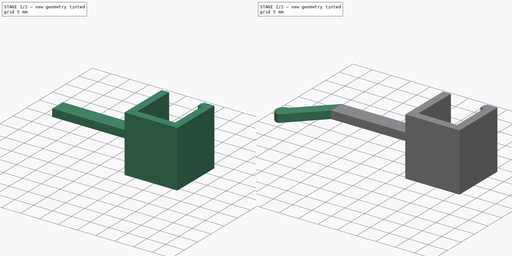
[diagram: build sequence overview — one tinted view per stage of 2, left to right]
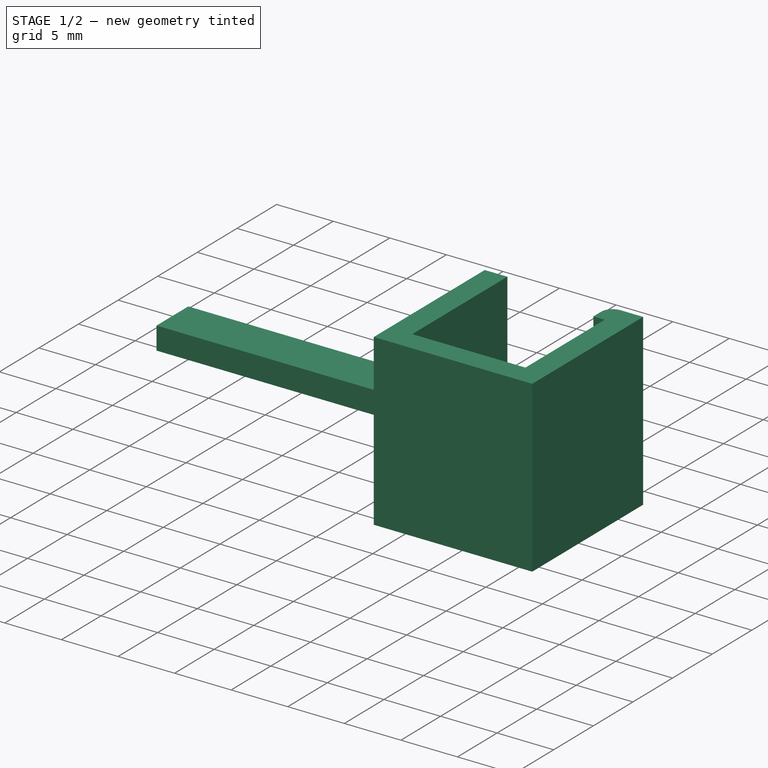
[diagram: stage 1 of 2 — iso view after this stage's code; geometry added in this stage tinted green]
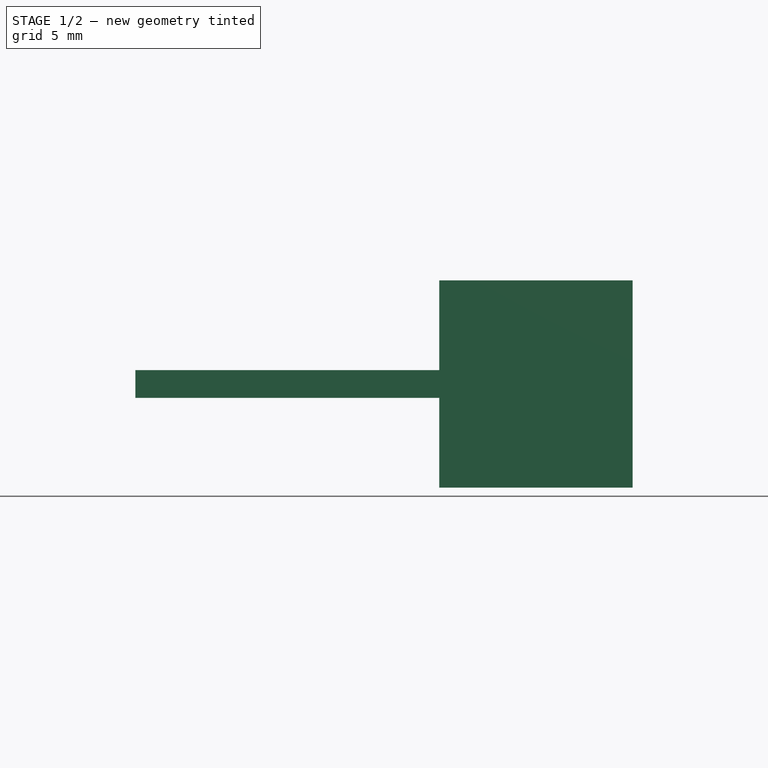
[diagram: stage 1 of 2 — front view after this stage's code; geometry added in this stage tinted green]
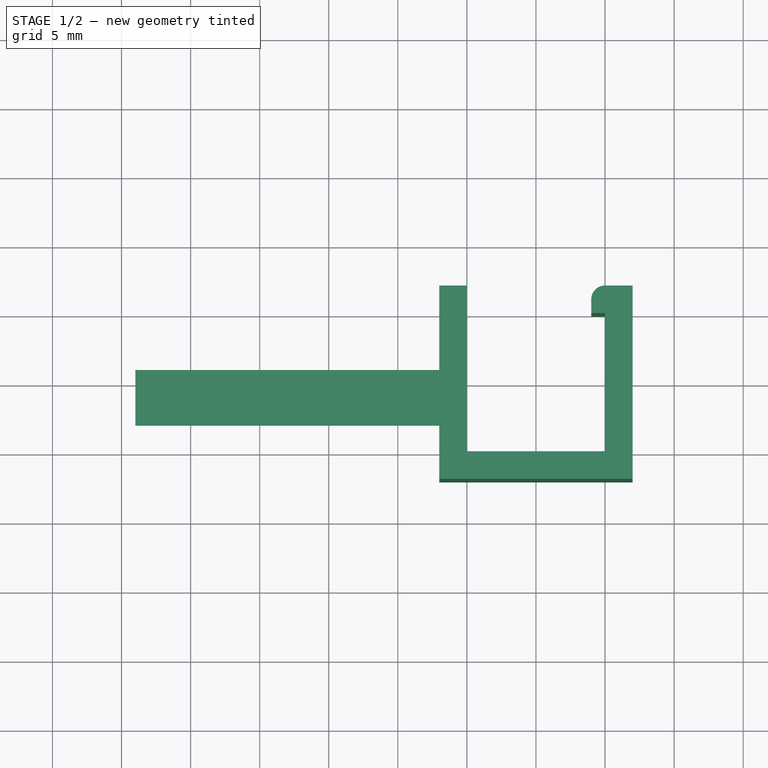
[diagram: stage 1 of 2 — top view after this stage's code; geometry added in this stage tinted green]
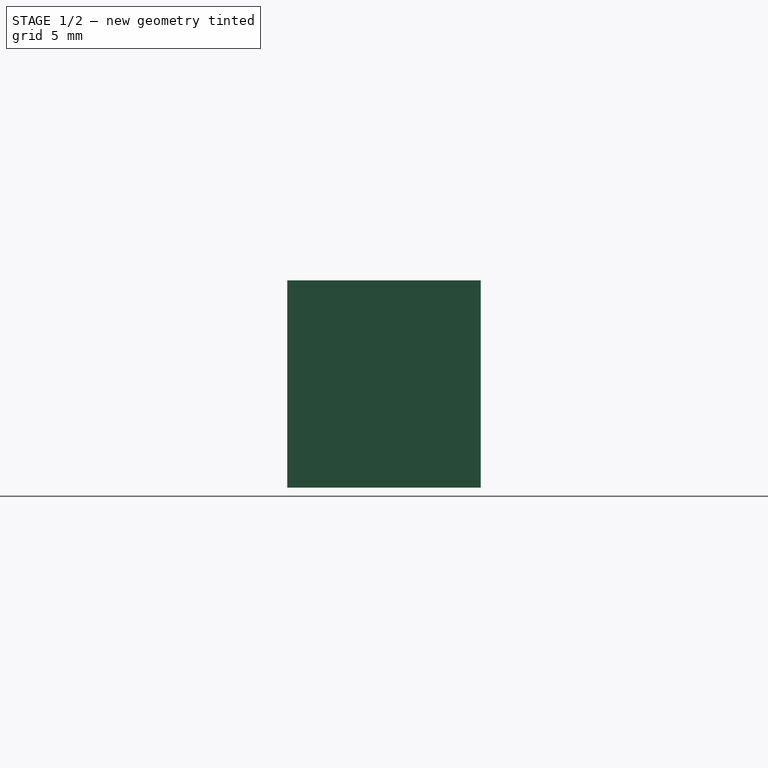
[diagram: stage 1 of 2 — right view after this stage's code; geometry added in this stage tinted green]
FCSTD DOCUMENT  (FreeCAD 0.20R29177 +426 (Git))
Label: kitchenHanger
License: All rights reserved
LicenseURL: http://en.wikipedia.org/wiki/All_rights_reserved
objects: Sketcher::SketchObject×3, PartDesign::Pad×3, Spreadsheet::Sheet×1, PartDesign::Body×1
note: 10 computed .brp shape members not serialized (recipe doc carries the construction recipe); baked Part::Feature solids carry a one-line shape summary decoded from their .brp

FEATURE [Sketcher::SketchObject] Sketch
  FullyConstrained = true
  MapMode = 5
  Support = -> [XY_Plane]
  expr: Constraints[17] = Spreadsheet.totalClamDepth + Spreadsheet.wallThickness
  expr: Constraints[18] = Spreadsheet.hangerClamOpenWidth + Spreadsheet.wallThickness
  expr: Constraints[21] = Spreadsheet.clamDepth
  expr: Constraints[26] = Spreadsheet.hangerClamOpenWidth
  expr: Constraints[27] = Spreadsheet.underClamBumpLen
  expr: Constraints[2] = Spreadsheet.hangerClamOpenWidth
  expr: Constraints[30] = Spreadsheet.totalClamDepth
  expr: Constraints[31] = Spreadsheet.clamDepth + Spreadsheet.underClamBumpLen
  expr: Constraints[32] = Spreadsheet.hangerClamOpenWidth
  expr: Constraints[5] = Spreadsheet.totalClamDepth
  expr: Constraints[9] = Spreadsheet.wallThickness
  sketch-geometry (11):
    g0: LineSegment StartX=0 StartY=0 StartZ=0 EndX=10 EndY=0 EndZ=0
    g1: LineSegment StartX=0 StartY=0 StartZ=0 EndX=0 EndY=12 EndZ=0
    g2: LineSegment StartX=0 StartY=12 StartZ=0 EndX=-2 EndY=12 EndZ=0
    g3: LineSegment StartX=10 StartY=12 StartZ=0 EndX=12 EndY=12 EndZ=0
    g4: LineSegment StartX=-2 StartY=12 StartZ=0 EndX=-2 EndY=-2 EndZ=0
    g5: LineSegment StartX=12 StartY=12 StartZ=0 EndX=12 EndY=-2 EndZ=0
    g6: LineSegment StartX=12 StartY=-2 StartZ=0 EndX=-2 EndY=-2 EndZ=0
    g7: LineSegment StartX=10 StartY=0 StartZ=0 EndX=10 EndY=10 EndZ=0
    g8: LineSegment StartX=10 StartY=10 StartZ=0 EndX=9 EndY=10 EndZ=0
    g9: LineSegment StartX=9 StartY=11 StartZ=0 EndX=9 EndY=10 EndZ=0
    g10: ArcOfCircle CenterX=10 CenterY=11 CenterZ=0 NormalX=0 NormalY=0 NormalZ=1 AngleXU=0 Radius=1 StartAngle=1.5708 EndAngle=3.14159
  constraints (33):
    c: Coincident(g0,g-1)
    c: PointOnObject(g0,g-1)
    c: DistanceX(g0,g0) = 10
    c: Coincident(g1,g0)
    c: Vertical(g1)
    c: DistanceY(g1,g1) = 12
    c: Coincident(g2,g1)
    c: Horizontal(g2)
    c: Horizontal(g3)
    c: DistanceX(g2,g2) = 2
    c: Coincident(g4,g2)
    c: Vertical(g4)
    c: Coincident(g5,g3)
    c: Vertical(g5)
    c: Coincident(g6,g5)
    c: Coincident(g6,g4)
    c: Horizontal(g6)
    c: DistanceY(g5,g5) = 14
    c: DistanceX(g0,g3) = 12
    c: Coincident(g7,g0)
    c: Vertical(g7)
    c: DistanceY(g7,g7) = 10
    c: Coincident(g8,g7)
    c: Horizontal(g8)
    c: Vertical(g9)
    c: Coincident(g9,g8)
    c: DistanceX(g0,g10) = 10
    c: Radius(g10) = 1
    c: Coincident(g10,g9)
    c: Coincident(g10,g3)
    c: DistanceY(g0,g3) = 12
    c: DistanceY(g0,g9) = 11
    c: DistanceX(g0,g3) = 10
FEATURE [Spreadsheet::Sheet] Spreadsheet
  cells = A2=hangerClamOpenWidth; B2(hangerClamOpenWidth)=10; A3=wallThickness; B3(wallThickness)=2; A4=bracketPad; B4(bracketPad)=15; A5=hangerR; B5(hangerR)=2; A6=hangerLength; B6(hangerLength)=22; A7=hookLength; B7(hookLength)=8; A8=clamDepth; B8(clamDepth)=10; A10=centerX; B10(centerX)==(B2 + B3) / 2 - B13 / 2 - B3; A11=centerY; B11(centerY)==B5 / 2; A12=hangerEnd; B12(hangerEnd)==B6 + B3; C12=B6+B3; A13=hangerRY; B13(hangerRY)=4; A14=clamDepthExtra; B14(clamDepthExtra)=2; A16=totalClamDepth; B16(totalClamDepth)==B8 + B14; A18=underClamBumpLen; B18(underClamBumpLen)=1
FEATURE [PartDesign::Pad] Pad
  Direction = (0,0,1)
  Length = 15
  Length2 = 10
  Midplane = true
  Profile = -> Sketch
  ReferenceAxis = -> Sketch [N_Axis]
  Type = 0
  expr: Length = Spreadsheet.bracketPad
FEATURE [Sketcher::SketchObject] Sketch001
  FullyConstrained = true
  MapMode = 5
  Placement = pos=(0,0,0) rot=(0.57735,0.57735,0.57735;2.0944rad)
  Support = -> [YZ_Plane]
  expr: Constraints[10] = Spreadsheet.centerX
  expr: Constraints[11] = Spreadsheet.centerY
  expr: Constraints[8] = Spreadsheet.hangerR
  expr: Constraints[9] = Spreadsheet.hangerRY
  sketch-geometry (4):
    g0: LineSegment StartX=6 StartY=1 StartZ=0 EndX=2 EndY=1 EndZ=0
    g1: LineSegment StartX=2 StartY=1 StartZ=0 EndX=2 EndY=-1 EndZ=0
    g2: LineSegment StartX=2 StartY=-1 StartZ=0 EndX=6 EndY=-1 EndZ=0
    g3: LineSegment StartX=6 StartY=-1 StartZ=0 EndX=6 EndY=1 EndZ=0
  constraints (12):
    c: Coincident(g0,g1)
    c: Coincident(g1,g2)
    c: Coincident(g2,g3)
    c: Coincident(g3,g0)
    c: Horizontal(g0)
    c: Horizontal(g2)
    c: Vertical(g1)
    c: Vertical(g3)
    c: DistanceY(g3,g3) = 2
    c: DistanceX(g0,g0) = 4
    c: DistanceX(g-1,g1) = 2
    c: DistanceY(g-1,g0) = 1
FEATURE [PartDesign::Pad] Pad001
  BaseFeature = -> Pad
  Direction = (1,-2e-16,3e-16)
  Length = 24
  Length2 = 10
  Profile = -> Sketch001
  ReferenceAxis = -> Sketch001 [N_Axis]
  Reversed = true
  Type = 0
  expr: Length = Spreadsheet.hangerLength + Spreadsheet.wallThickness
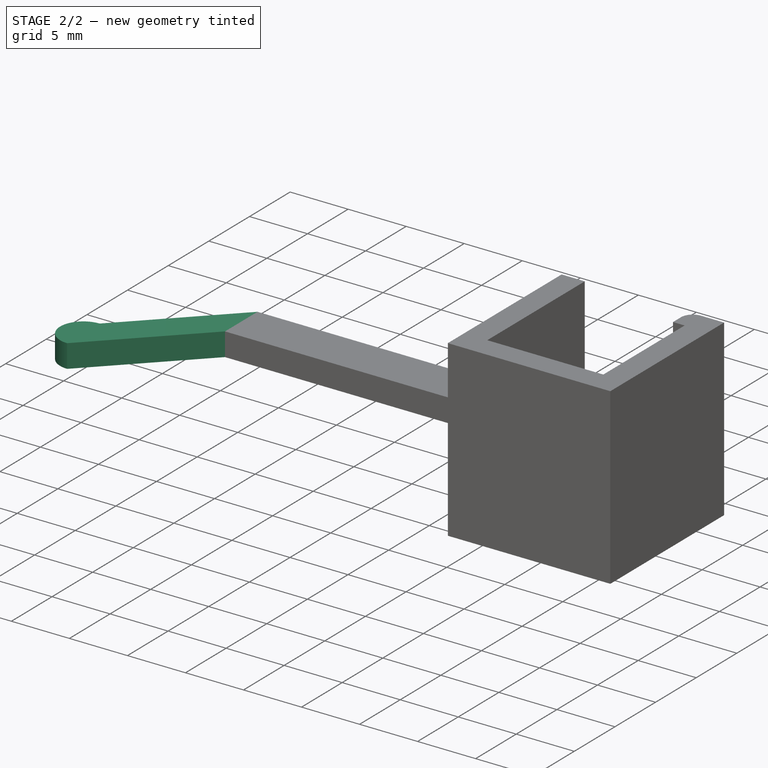
[diagram: stage 2 of 2 — iso view after this stage's code; geometry added in this stage tinted green]
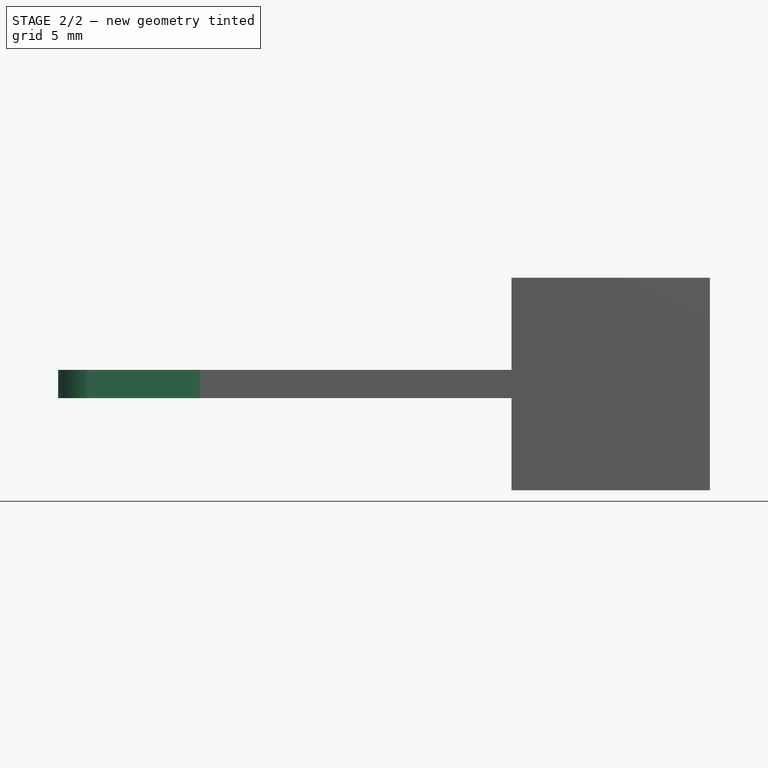
[diagram: stage 2 of 2 — front view after this stage's code; geometry added in this stage tinted green]
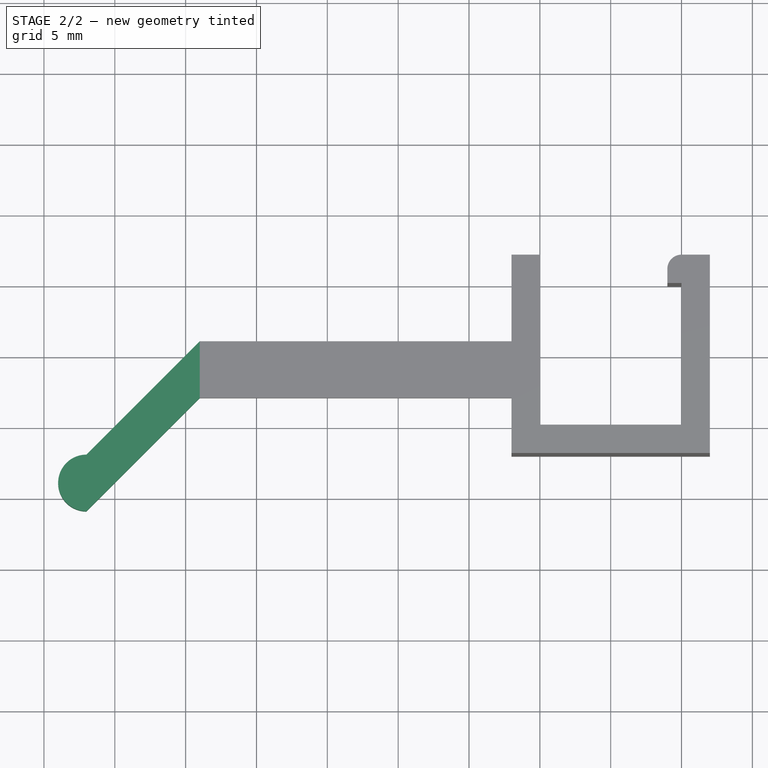
[diagram: stage 2 of 2 — top view after this stage's code; geometry added in this stage tinted green]
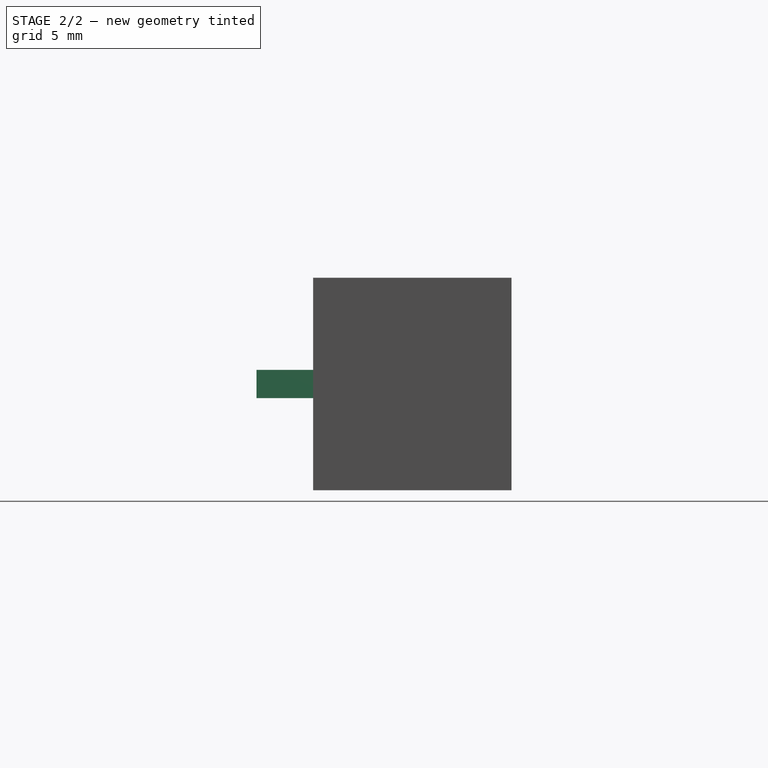
[diagram: stage 2 of 2 — right view after this stage's code; geometry added in this stage tinted green]
FEATURE [Sketcher::SketchObject] Sketch002
  FullyConstrained = true
  MapMode = 5
  Support = -> [XY_Plane]
  expr: Constraints[10] = Spreadsheet.hookLength
  expr: Constraints[11] = Spreadsheet.centerX + Spreadsheet.hangerRY
  expr: Constraints[12] = Spreadsheet.hangerRY / 2
  expr: Constraints[3] = Spreadsheet.hangerEnd
  expr: Constraints[5] = Spreadsheet.hookLength
  expr: Constraints[6] = Spreadsheet.centerX
  expr: Constraints[9] = Spreadsheet.hookLength
  sketch-geometry (4):
    g0: LineSegment StartX=-24 StartY=6 StartZ=0 EndX=-32 EndY=-2 EndZ=0
    g1: LineSegment StartX=-32 StartY=-6 StartZ=0 EndX=-24 EndY=2 EndZ=0
    g2: LineSegment StartX=-24 StartY=2 StartZ=0 EndX=-24 EndY=6 EndZ=0
    g3: ArcOfCircle CenterX=-32 CenterY=-4 CenterZ=0 NormalX=0 NormalY=0 NormalZ=1 AngleXU=0 Radius=2 StartAngle=1.5708 EndAngle=4.71239
  constraints (13):
    c: Coincident(g2,g1)
    c: Coincident(g2,g0)
    c: Vertical(g2)
    c: DistanceX(g1,g-1) = 24
    c: Parallel(g0,g1)
    c: DistanceX(g1,g1) = 8
    c: DistanceY(g-1,g1) = 2
    c: Coincident(g3,g0)
    c: Coincident(g3,g1)
    c: DistanceX(g3,g0) = 8
    c: DistanceY(g1,g1) = 8
    c: DistanceY(g-1,g0) = 6
    c: Radius(g3) = 2
FEATURE [PartDesign::Pad] Pad002
  BaseFeature = -> Pad001
  Direction = (0,0,1)
  Length = 2
  Length2 = 10
  Midplane = true
  Profile = -> Sketch002
  ReferenceAxis = -> Sketch002 [N_Axis]
  Type = 0
  expr: Length = Spreadsheet.wallThickness
FEATURE [PartDesign::Body] Body
  Group = -> [Sketch,Pad,Sketch001,Pad001,Sketch002,Pad002]
  Origin = -> Origin
  Tip = -> Pad002
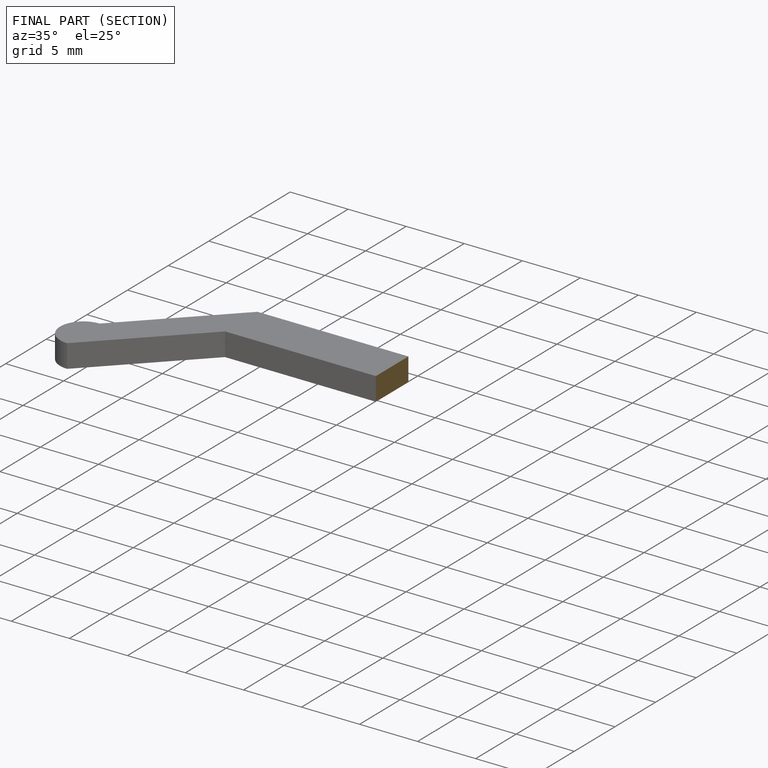
[diagram: finished part — half-section view (interior)]
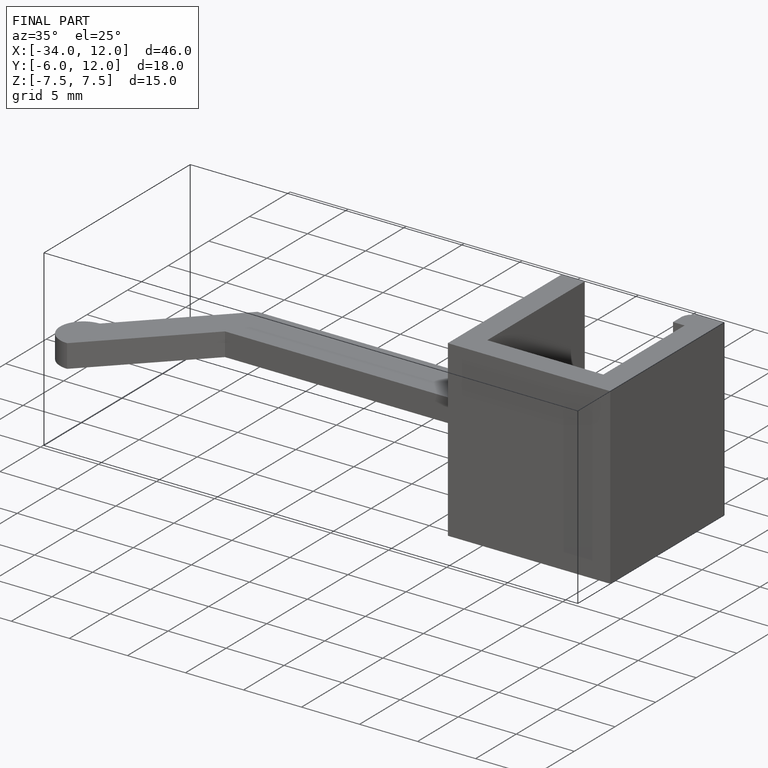
[diagram: finished part — iso view with bounding-box wireframe]
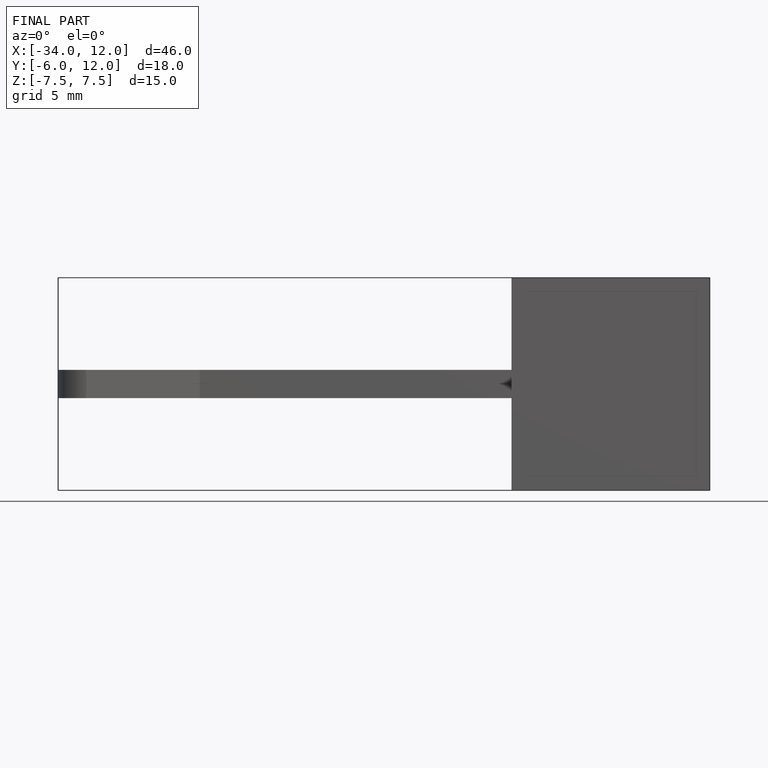
[diagram: finished part — front view with bounding-box wireframe]
